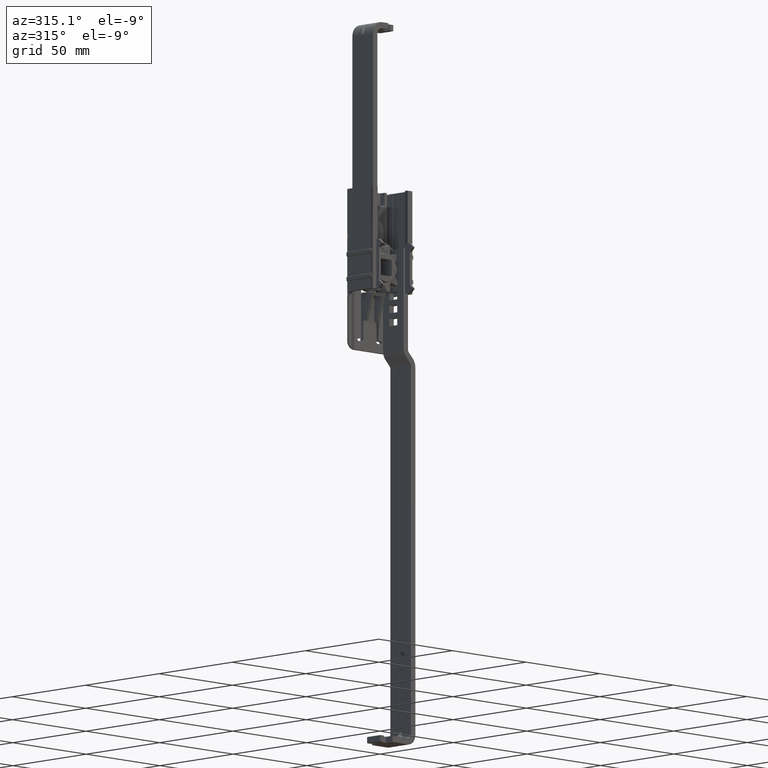
[diagram: clean part render]
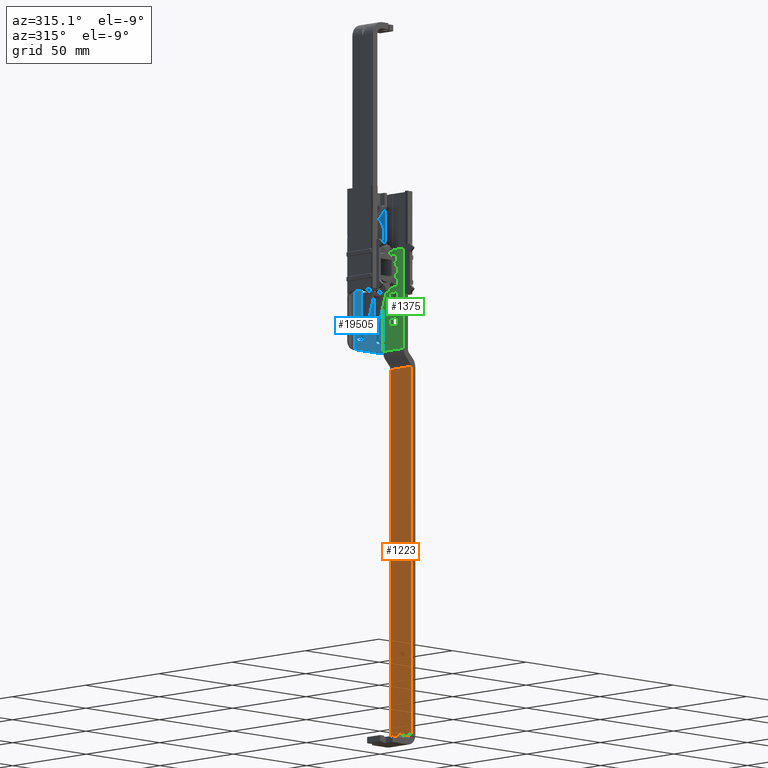
[diagram: same view with three faces highlighted in distinct colors, each labeled with its STEP entity id]
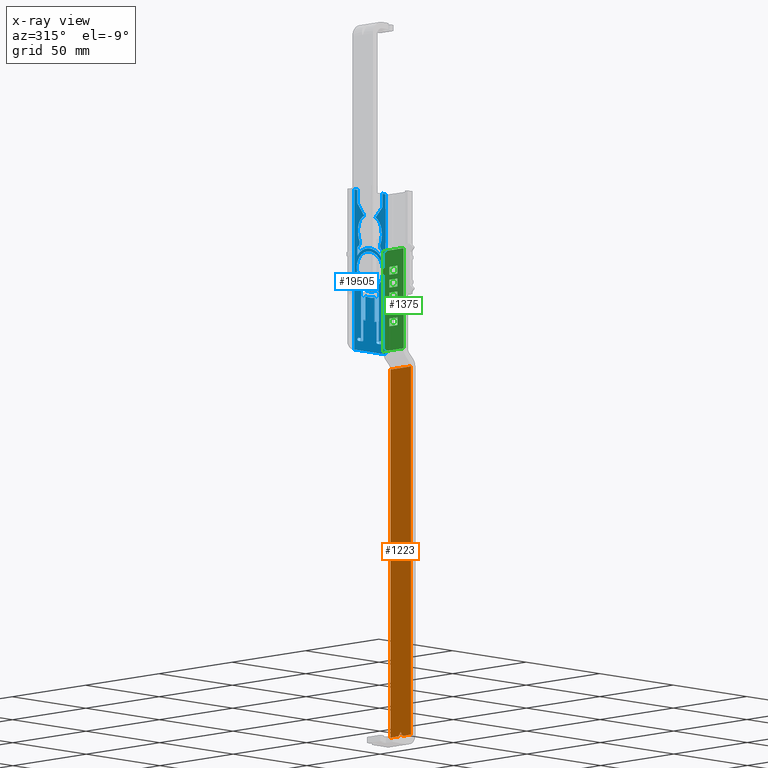
[diagram: x-ray of the same camera — body ghosted, the three highlighted faces saturated]
A machine part, auxiliary view with three faces highlighted in distinct colors.
The next image is the same camera in x-ray (body ghosted, the three faces saturated) — at least one of them is partly hidden behind the body in this view.
Their STEP definitions:

[orange] entity #1223 — the highlighted face is a freeform B-spline surface patch.
#698=CARTESIAN_POINT('',(13.900000278744701,-1.414213629544636,-226.700007715914500));
#699=VERTEX_POINT('',#698);
#713=CARTESIAN_POINT('',(13.900000278744701,5.551115E-014,-224.700007620919510));
#714=VERTEX_POINT('',#713);
#715=CARTESIAN_POINT('',(13.900000278744701,5.551115E-014,-224.700007620919510));
#716=CARTESIAN_POINT('',(13.900000278744701,-1.414213629544636,-226.700007715914500));
#717=QUASI_UNIFORM_CURVE('',1,(#715,#716),.UNSPECIFIED.,.F.,.U.);
#718=EDGE_CURVE('',#714,#699,#717,.T.);
#735=CARTESIAN_POINT('',(13.900000278744701,1.414213629544636,-226.700007715914500));
#736=VERTEX_POINT('',#735);
#756=CARTESIAN_POINT('',(13.900000278744701,5.551115E-014,-224.700007620919510));
#757=CARTESIAN_POINT('',(13.900000278744701,1.414213629544636,-226.700007715914500));
#758=QUASI_UNIFORM_CURVE('',1,(#756,#757),.UNSPECIFIED.,.F.,.U.);
#759=EDGE_CURVE('',#714,#736,#758,.T.);
#1024=CARTESIAN_POINT('',(13.900000278744701,7.000000332482160,-226.700007715914500));
#1025=VERTEX_POINT('',#1024);
#1039=CARTESIAN_POINT('',(13.900000278744839,7.000000332482160,-47.299533091249899));
#1040=VERTEX_POINT('',#1039);
#1041=CARTESIAN_POINT('',(13.900000278744839,7.000000332482160,-47.299533091249899));
#1042=CARTESIAN_POINT('',(13.900000278744701,7.000000332482160,-226.700007715914500));
#1043=QUASI_UNIFORM_CURVE('',1,(#1041,#1042),.UNSPECIFIED.,.F.,.U.);
#1044=EDGE_CURVE('',#1040,#1025,#1043,.T.);
#1184=CARTESIAN_POINT('',(13.900000278744701,7.000000332482160,-226.700007715914500));
#1185=CARTESIAN_POINT('',(13.900000278744701,1.414213629544636,-226.700007715914500));
#1186=QUASI_UNIFORM_CURVE('',1,(#1184,#1185),.UNSPECIFIED.,.F.,.U.);
#1187=EDGE_CURVE('',#1025,#736,#1186,.T.);
#1193=CARTESIAN_POINT('',(13.900000278744701,-7.699300469984287,-235.661066127953490));
#1194=CARTESIAN_POINT('',(13.900000278744701,-7.699300469984287,-38.338474679210961));
#1195=CARTESIAN_POINT('',(13.900000278744701,7.699300720323916,-235.661066127953490));
#1196=CARTESIAN_POINT('',(13.900000278744701,7.699300720323916,-38.338474679210961));
#1197=B_SPLINE_SURFACE_WITH_KNOTS('',1,1,((#1193,#1195),(#1194,#1196)),.UNSPECIFIED.,.F.,.F.,.U.,(2,2),(2,2),(0.0,197.322591448742490),(0.0,15.398601190308201),.UNSPECIFIED.);
#1198=ORIENTED_EDGE('',*,*,#759,.F.);
#1199=ORIENTED_EDGE('',*,*,#718,.T.);
#1200=CARTESIAN_POINT('',(13.900000278744701,-7.000000332482050,-226.700007715914500));
#1201=VERTEX_POINT('',#1200);
#1202=CARTESIAN_POINT('',(13.900000278744701,-1.414213629544636,-226.700007715914500));
#1203=CARTESIAN_POINT('',(13.900000278744701,-7.000000332482050,-226.700007715914500));
#1204=QUASI_UNIFORM_CURVE('',1,(#1202,#1203),.UNSPECIFIED.,.F.,.U.);
#1205=EDGE_CURVE('',#699,#1201,#1204,.T.);
#1206=ORIENTED_EDGE('',*,*,#1205,.T.);
#1207=CARTESIAN_POINT('',(13.900000278744839,-7.000000332482050,-47.299533091249899));
#1208=VERTEX_POINT('',#1207);
#1209=CARTESIAN_POINT('',(13.900000278744839,-7.000000332482050,-47.299533091249899));
#1210=CARTESIAN_POINT('',(13.900000278744701,-7.000000332482050,-226.700007715914500));
#1211=QUASI_UNIFORM_CURVE('',1,(#1209,#1210),.UNSPECIFIED.,.F.,.U.);
#1212=EDGE_CURVE('',#1208,#1201,#1211,.T.);
#1213=ORIENTED_EDGE('',*,*,#1212,.F.);
#1214=CARTESIAN_POINT('',(13.900000278744839,7.000000332482160,-47.299533091249899));
#1215=CARTESIAN_POINT('',(13.900000278744839,-7.000000332482050,-47.299533091249899));
#1216=QUASI_UNIFORM_CURVE('',1,(#1214,#1215),.UNSPECIFIED.,.F.,.U.);
#1217=EDGE_CURVE('',#1040,#1208,#1216,.T.);
#1218=ORIENTED_EDGE('',*,*,#1217,.F.);
#1219=ORIENTED_EDGE('',*,*,#1044,.T.);
#1220=ORIENTED_EDGE('',*,*,#1187,.T.);
#1221=EDGE_LOOP('',(#1198,#1199,#1206,#1213,#1218,#1219,#1220));
#1222=FACE_OUTER_BOUND('',#1221,.T.);
#1223=ADVANCED_FACE('',(#1222),#1197,.T.);

[blue] entity #19505 — the highlighted face is a freeform B-spline surface patch.
#7535=CARTESIAN_POINT('',(8.872564270109628,7.000000332482159,-0.698285953441692));
#7536=VERTEX_POINT('',#7535);
#7542=CARTESIAN_POINT('',(0.0,7.000000332482160,8.900000000000000));
#7543=VERTEX_POINT('',#7542);
#7544=CARTESIAN_POINT('',(8.872564270109628,7.000000332482159,-0.698285953441692));
#7545=CARTESIAN_POINT('',(8.900000000000000,7.000000332482160,-0.349681953838924));
#7546=CARTESIAN_POINT('',(8.900000000000000,7.000000332482160,0.0));
#7547=CARTESIAN_POINT('',(8.900000000000000,7.000000332482161,8.900000000000000));
#7548=CARTESIAN_POINT('',(0.0,7.000000332482160,8.900000000000000));
#7556=(BOUNDED_CURVE()B_SPLINE_CURVE(2,(#7544,#7545,#7546,#7547,#7548),.UNSPECIFIED.,.F.,.U.)B_SPLINE_CURVE_WITH_KNOTS((3,2,3),(0.736331300576201,0.750000000000000,1.0),.UNSPECIFIED.)CURVE()GEOMETRIC_REPRESENTATION_ITEM()RATIONAL_B_SPLINE_CURVE((0.969723356053766,0.983986122515079,1.0,0.707106781186548,1.0))REPRESENTATION_ITEM(''));
#7557=EDGE_CURVE('',#7536,#7543,#7556,.T.);
#7559=CARTESIAN_POINT('',(-8.872564270109628,7.000000332482161,0.698285953441691));
#7560=VERTEX_POINT('',#7559);
#7561=CARTESIAN_POINT('',(0.0,7.000000332482160,8.900000000000000));
#7562=CARTESIAN_POINT('',(-8.227075373034907,7.000000332482161,8.899999999999999));
#7563=CARTESIAN_POINT('',(-8.872564270109628,7.000000332482161,0.698285953441691));
#7571=(BOUNDED_CURVE()B_SPLINE_CURVE(2,(#7561,#7562,#7563),.UNSPECIFIED.,.F.,.U.)B_SPLINE_CURVE_WITH_KNOTS((3,3),(0.0,0.236331300576201),.UNSPECIFIED.)CURVE()GEOMETRIC_REPRESENTATION_ITEM()RATIONAL_B_SPLINE_CURVE((1.0,0.723120658671468,0.969723356053766))REPRESENTATION_ITEM(''));
#7572=EDGE_CURVE('',#7543,#7560,#7571,.T.);
#7618=CARTESIAN_POINT('',(0.0,7.000000332482160,-8.900000000000000));
#7619=VERTEX_POINT('',#7618);
#7620=CARTESIAN_POINT('',(-8.872564270109628,7.000000332482161,0.698285953441691));
#7621=CARTESIAN_POINT('',(-8.899999999999999,7.000000332482160,0.349681953838922));
#7622=CARTESIAN_POINT('',(-8.900000000000000,7.000000332482160,0.0));
#7623=CARTESIAN_POINT('',(-8.900000000000000,7.000000332482161,-8.900000000000000));
#7624=CARTESIAN_POINT('',(0.0,7.000000332482160,-8.900000000000000));
#7632=(BOUNDED_CURVE()B_SPLINE_CURVE(2,(#7620,#7621,#7622,#7623,#7624),.UNSPECIFIED.,.F.,.U.)B_SPLINE_CURVE_WITH_KNOTS((3,2,3),(0.236331300576201,0.250000000000000,0.500000000000000),.UNSPECIFIED.)CURVE()GEOMETRIC_REPRESENTATION_ITEM()RATIONAL_B_SPLINE_CURVE((0.969723356053766,0.983986122515080,1.0,0.707106781186548,1.0))REPRESENTATION_ITEM(''));
#7633=EDGE_CURVE('',#7560,#7619,#7632,.T.);
#7635=CARTESIAN_POINT('',(0.0,7.000000332482160,-8.900000000000000));
#7636=CARTESIAN_POINT('',(8.227075373034877,7.000000332482162,-8.900000000000000));
#7637=CARTESIAN_POINT('',(8.872564270109628,7.000000332482159,-0.698285953441692));
#7645=(BOUNDED_CURVE()B_SPLINE_CURVE(2,(#7635,#7636,#7637),.UNSPECIFIED.,.F.,.U.)B_SPLINE_CURVE_WITH_KNOTS((3,3),(0.500000000000000,0.736331300576200),.UNSPECIFIED.)CURVE()GEOMETRIC_REPRESENTATION_ITEM()RATIONAL_B_SPLINE_CURVE((1.0,0.723120658671469,0.969723356053765))REPRESENTATION_ITEM(''));
#7646=EDGE_CURVE('',#7619,#7536,#7645,.T.);
#8052=CARTESIAN_POINT('',(8.500000403728791,7.000000332482160,5.992495756123070));
#8053=VERTEX_POINT('',#8052);
#8102=CARTESIAN_POINT('',(-8.500000403728802,7.000000332482160,5.992495756123050));
#8103=VERTEX_POINT('',#8102);
#8137=CARTESIAN_POINT('',(8.500000403728794,7.000000332482160,5.992495756123069));
#8138=CARTESIAN_POINT('',(5.392711844738725,7.000000332482160,10.400000588968380));
#8139=CARTESIAN_POINT('',(0.0,7.000000332482160,10.400000588968380));
#8140=CARTESIAN_POINT('',(-5.392711844738736,7.000000332482160,10.400000588968380));
#8141=CARTESIAN_POINT('',(-8.500000403728803,7.000000332482160,5.992495756123058));
#8149=(BOUNDED_CURVE()B_SPLINE_CURVE(2,(#8137,#8138,#8139,#8140,#8141),.UNSPECIFIED.,.F.,.U.)B_SPLINE_CURVE_WITH_KNOTS((3,2,3),(0.0,0.500000000000000,1.0),.UNSPECIFIED.)CURVE()GEOMETRIC_REPRESENTATION_ITEM()RATIONAL_B_SPLINE_CURVE((1.0,0.887750382252983,1.0,0.887750382252983,1.0))REPRESENTATION_ITEM(''));
#8150=EDGE_CURVE('',#8053,#8103,#8149,.T.);
#9176=CARTESIAN_POINT('',(8.500000403728791,7.000000332482160,10.099010332132220));
#9177=VERTEX_POINT('',#9176);
#9178=CARTESIAN_POINT('',(8.500000403728791,7.000000332482160,5.992495756123070));
#9179=CARTESIAN_POINT('',(8.500000403728791,7.000000332482160,10.099010332132220));
#9180=QUASI_UNIFORM_CURVE('',1,(#9178,#9179),.UNSPECIFIED.,.F.,.U.);
#9181=EDGE_CURVE('',#8053,#9177,#9180,.T.);
#9203=CARTESIAN_POINT('',(-8.500000403728802,7.000000332482160,10.099010332132661));
#9204=VERTEX_POINT('',#9203);
#9205=CARTESIAN_POINT('',(-8.500000403728802,7.000000332482160,10.099010332132661));
#9206=CARTESIAN_POINT('',(-8.500000403728802,7.000000332482160,5.992495756123050));
#9207=QUASI_UNIFORM_CURVE('',1,(#9205,#9206),.UNSPECIFIED.,.F.,.U.);
#9208=EDGE_CURVE('',#9204,#8103,#9207,.T.);
#9241=CARTESIAN_POINT('',(3.907428746374555,7.000000332482160,25.980832370689001));
#9242=VERTEX_POINT('',#9241);
#9250=CARTESIAN_POINT('',(8.500000403728411,7.000000332482160,31.454046142592400));
#9251=VERTEX_POINT('',#9250);
#9252=CARTESIAN_POINT('',(8.500000403728411,7.000000332482160,31.454046142592400));
#9253=CARTESIAN_POINT('',(3.907428746374555,7.000000332482160,25.980832370689001));
#9254=QUASI_UNIFORM_CURVE('',1,(#9252,#9253),.UNSPECIFIED.,.F.,.U.);
#9255=EDGE_CURVE('',#9251,#9242,#9254,.T.);
#9270=CARTESIAN_POINT('',(8.500000403728411,7.000000332482160,38.000001804903100));
#9271=VERTEX_POINT('',#9270);
#9272=CARTESIAN_POINT('',(8.500000403728411,7.000000332482160,38.000001804903100));
#9273=CARTESIAN_POINT('',(8.500000403728411,7.000000332482160,31.454046142592400));
#9274=QUASI_UNIFORM_CURVE('',1,(#9272,#9273),.UNSPECIFIED.,.F.,.U.);
#9275=EDGE_CURVE('',#9271,#9251,#9274,.T.);
#9366=CARTESIAN_POINT('',(-8.500000403728411,7.000000332482160,31.454046142592400));
#9367=VERTEX_POINT('',#9366);
#9368=CARTESIAN_POINT('',(-8.500000403728411,7.000000332482160,38.000001804903100));
#9369=VERTEX_POINT('',#9368);
#9370=CARTESIAN_POINT('',(-8.500000403728411,7.000000332482160,31.454046142592400));
#9371=CARTESIAN_POINT('',(-8.500000403728411,7.000000332482160,38.000001804903100));
#9372=QUASI_UNIFORM_CURVE('',1,(#9370,#9371),.UNSPECIFIED.,.F.,.U.);
#9373=EDGE_CURVE('',#9367,#9369,#9372,.T.);
#9438=CARTESIAN_POINT('',(-3.907428746374555,7.000000332482160,25.980832370689001));
#9439=VERTEX_POINT('',#9438);
#9440=CARTESIAN_POINT('',(-3.907428746374555,7.000000332482160,25.980832370689001));
#9441=CARTESIAN_POINT('',(-8.500000403728411,7.000000332482160,31.454046142592400));
#9442=QUASI_UNIFORM_CURVE('',1,(#9440,#9441),.UNSPECIFIED.,.F.,.U.);
#9443=EDGE_CURVE('',#9439,#9367,#9442,.T.);
#9502=CARTESIAN_POINT('',(8.000000379979579,7.000000332482160,17.000000807456651));
#9503=VERTEX_POINT('',#9502);
#9509=CARTESIAN_POINT('',(8.000000379979579,7.000000332482160,19.000000902451450));
#9510=VERTEX_POINT('',#9509);
#9511=CARTESIAN_POINT('',(8.000000379979579,7.000000332482160,17.000000807456651));
#9512=CARTESIAN_POINT('',(8.000000379979579,7.000000332482160,19.000000902451450));
#9513=QUASI_UNIFORM_CURVE('',1,(#9511,#9512),.UNSPECIFIED.,.F.,.U.);
#9514=EDGE_CURVE('',#9503,#9510,#9513,.T.);
#9560=CARTESIAN_POINT('',(8.000000379979579,7.000000332482160,19.000000902451450));
#9561=CARTESIAN_POINT('',(8.000000379979991,7.000000332482160,23.690069045627766));
#9562=CARTESIAN_POINT('',(3.907428746374555,7.000000332482160,25.980832370689001));
#9570=(BOUNDED_CURVE()B_SPLINE_CURVE(2,(#9560,#9561,#9562),.UNSPECIFIED.,.F.,.U.)CURVE()GEOMETRIC_REPRESENTATION_ITEM()QUASI_UNIFORM_CURVE()RATIONAL_B_SPLINE_CURVE((1.0,0.862678551105531,1.0))REPRESENTATION_ITEM(''));
#9571=EDGE_CURVE('',#9510,#9242,#9570,.T.);
#9592=CARTESIAN_POINT('',(7.097949815014130,7.000000332482160,13.309592360791600));
#9593=VERTEX_POINT('',#9592);
#9601=CARTESIAN_POINT('',(7.097949815014136,7.000000332482160,13.309592360791591));
#9602=CARTESIAN_POINT('',(8.000000379979722,7.000000332482160,15.044551982000174));
#9603=CARTESIAN_POINT('',(8.000000379979579,7.000000332482160,17.000000807456651));
#9611=(BOUNDED_CURVE()B_SPLINE_CURVE(2,(#9601,#9602,#9603),.UNSPECIFIED.,.F.,.U.)CURVE()GEOMETRIC_REPRESENTATION_ITEM()QUASI_UNIFORM_CURVE()RATIONAL_B_SPLINE_CURVE((1.0,0.971401998334094,1.0))REPRESENTATION_ITEM(''));
#9612=EDGE_CURVE('',#9593,#9503,#9611,.T.);
#9636=CARTESIAN_POINT('',(-8.000000379979520,7.000000332482160,17.000000807456601));
#9637=VERTEX_POINT('',#9636);
#9652=CARTESIAN_POINT('',(-8.000000379979710,7.000000332482160,19.000000902451450));
#9653=VERTEX_POINT('',#9652);
#9659=CARTESIAN_POINT('',(-8.000000379979710,7.000000332482160,19.000000902451450));
#9660=CARTESIAN_POINT('',(-8.000000379979520,7.000000332482160,17.000000807456601));
#9661=QUASI_UNIFORM_CURVE('',1,(#9659,#9660),.UNSPECIFIED.,.F.,.U.);
#9662=EDGE_CURVE('',#9653,#9637,#9661,.T.);
#9681=CARTESIAN_POINT('',(7.808463576841071,7.000000332482160,10.642739925463600));
#9682=VERTEX_POINT('',#9681);
#9712=CARTESIAN_POINT('',(7.097949815014135,7.000000332482160,13.309592360791600));
#9713=CARTESIAN_POINT('',(6.395715602484533,7.000000332482162,11.694425029540900));
#9714=CARTESIAN_POINT('',(7.808463576841074,7.000000332482160,10.642739925463610));
#9722=(BOUNDED_CURVE()B_SPLINE_CURVE(2,(#9712,#9713,#9714),.UNSPECIFIED.,.F.,.U.)CURVE()GEOMETRIC_REPRESENTATION_ITEM()QUASI_UNIFORM_CURVE()RATIONAL_B_SPLINE_CURVE((1.0,0.783513080592673,1.0))REPRESENTATION_ITEM(''));
#9723=EDGE_CURVE('',#9593,#9682,#9722,.T.);
#9756=CARTESIAN_POINT('',(-7.097908734437640,7.000000332482160,13.309497867794960));
#9757=VERTEX_POINT('',#9756);
#9783=CARTESIAN_POINT('',(-8.000000379979520,7.000000332482160,17.000000807456601));
#9784=CARTESIAN_POINT('',(-8.000003548259221,7.000000332482160,15.044495869587905));
#9785=CARTESIAN_POINT('',(-7.097908734437640,7.000000332482160,13.309497867794960));
#9793=(BOUNDED_CURVE()B_SPLINE_CURVE(2,(#9783,#9784,#9785),.UNSPECIFIED.,.F.,.U.)CURVE()GEOMETRIC_REPRESENTATION_ITEM()QUASI_UNIFORM_CURVE()RATIONAL_B_SPLINE_CURVE((1.0,0.971400472923823,1.0))REPRESENTATION_ITEM(''));
#9794=EDGE_CURVE('',#9637,#9757,#9793,.T.);
#9815=CARTESIAN_POINT('',(-7.808463576849401,7.000000332482160,10.642739925457480));
#9816=VERTEX_POINT('',#9815);
#9858=CARTESIAN_POINT('',(-7.808463576849405,7.000000332482160,10.642739925457480));
#9859=CARTESIAN_POINT('',(-6.395782917492917,7.000000332482160,11.694374918546524));
#9860=CARTESIAN_POINT('',(-7.097908734437635,7.000000332482160,13.309497867794960));
#9868=(BOUNDED_CURVE()B_SPLINE_CURVE(2,(#9858,#9859,#9860),.UNSPECIFIED.,.F.,.U.)CURVE()GEOMETRIC_REPRESENTATION_ITEM()QUASI_UNIFORM_CURVE()RATIONAL_B_SPLINE_CURVE((1.0,0.783527495207334,1.0))REPRESENTATION_ITEM(''));
#9869=EDGE_CURVE('',#9816,#9757,#9868,.T.);
#16624=CARTESIAN_POINT('',(-5.250000249361620,7.000000332482160,-35.500001686159600));
#16625=VERTEX_POINT('',#16624);
#16626=CARTESIAN_POINT('',(-4.500000213738530,7.000000332482160,-34.750001650536497));
#16627=VERTEX_POINT('',#16626);
#16628=CARTESIAN_POINT('',(-5.250000249361620,7.000000332482160,-35.500001686159592));
#16629=CARTESIAN_POINT('',(-4.500000213738531,7.000000332482161,-35.500001686159592));
#16630=CARTESIAN_POINT('',(-4.500000213738531,7.000000332482160,-34.750001650536497));
#16638=(BOUNDED_CURVE()B_SPLINE_CURVE(2,(#16628,#16629,#16630),.UNSPECIFIED.,.F.,.U.)CURVE()GEOMETRIC_REPRESENTATION_ITEM()QUASI_UNIFORM_CURVE()RATIONAL_B_SPLINE_CURVE((1.0,0.707106781186548,1.0))REPRESENTATION_ITEM(''));
#16639=EDGE_CURVE('',#16625,#16627,#16638,.T.);
#16676=CARTESIAN_POINT('',(-7.750000368105250,7.000000332482160,-35.500001686159600));
#16677=VERTEX_POINT('',#16676);
#16678=CARTESIAN_POINT('',(-7.750000368105250,7.000000332482160,-35.500001686159600));
#16679=CARTESIAN_POINT('',(-5.250000249361620,7.000000332482160,-35.500001686159600));
#16680=QUASI_UNIFORM_CURVE('',1,(#16678,#16679),.UNSPECIFIED.,.F.,.U.);
#16681=EDGE_CURVE('',#16677,#16625,#16680,.T.);
#16717=CARTESIAN_POINT('',(-7.750000368105250,7.000000332482160,-34.000001614913401));
#16718=VERTEX_POINT('',#16717);
#16719=CARTESIAN_POINT('',(-7.750000368105250,7.000000332482160,-34.000001614913380));
#16720=CARTESIAN_POINT('',(-8.500000403728368,7.000000332482162,-34.000001614913387));
#16721=CARTESIAN_POINT('',(-8.500000403728368,7.000000332482160,-34.750001650536497));
#16722=CARTESIAN_POINT('',(-8.500000403728368,7.000000332482162,-35.500001686159614));
#16723=CARTESIAN_POINT('',(-7.750000368105250,7.000000332482160,-35.500001686159607));
#16731=(BOUNDED_CURVE()B_SPLINE_CURVE(2,(#16719,#16720,#16721,#16722,#16723),.UNSPECIFIED.,.F.,.U.)B_SPLINE_CURVE_WITH_KNOTS((3,2,3),(0.0,0.500000000000000,1.0),.UNSPECIFIED.)CURVE()GEOMETRIC_REPRESENTATION_ITEM()RATIONAL_B_SPLINE_CURVE((1.0,0.707106781186547,1.0,0.707106781186547,1.0))REPRESENTATION_ITEM(''));
#16732=EDGE_CURVE('',#16718,#16677,#16731,.T.);
#16765=CARTESIAN_POINT('',(-6.500000308733380,7.000000332482160,-34.000001614913351));
#16766=VERTEX_POINT('',#16765);
#16767=CARTESIAN_POINT('',(-6.500000308733380,7.000000332482160,-34.000001614913351));
#16768=CARTESIAN_POINT('',(-7.750000368105250,7.000000332482160,-34.000001614913401));
#16769=QUASI_UNIFORM_CURVE('',1,(#16767,#16768),.UNSPECIFIED.,.F.,.U.);
#16770=EDGE_CURVE('',#16766,#16718,#16769,.T.);
#16802=CARTESIAN_POINT('',(-6.000000284984710,7.000000332482160,-33.500001591164597));
#16803=VERTEX_POINT('',#16802);
#16804=CARTESIAN_POINT('',(-6.500000308733430,7.000000332482160,-34.000001614913323));
#16805=CARTESIAN_POINT('',(-6.000000284984709,7.000000332482161,-34.000001614913309));
#16806=CARTESIAN_POINT('',(-6.000000284984709,7.000000332482160,-33.500001591164597));
#16814=(BOUNDED_CURVE()B_SPLINE_CURVE(2,(#16804,#16805,#16806),.UNSPECIFIED.,.F.,.U.)CURVE()GEOMETRIC_REPRESENTATION_ITEM()QUASI_UNIFORM_CURVE()RATIONAL_B_SPLINE_CURVE((1.0,0.707106781186548,1.0))REPRESENTATION_ITEM(''));
#16815=EDGE_CURVE('',#16766,#16803,#16814,.T.);
#16846=CARTESIAN_POINT('',(-6.000000284984650,7.000000332482160,-10.467091783660241));
#16847=VERTEX_POINT('',#16846);
#16848=CARTESIAN_POINT('',(-6.000000284984650,7.000000332482160,-10.467091783660241));
#16849=CARTESIAN_POINT('',(-6.000000284984710,7.000000332482160,-33.500001591164597));
#16850=QUASI_UNIFORM_CURVE('',1,(#16848,#16849),.UNSPECIFIED.,.F.,.U.);
#16851=EDGE_CURVE('',#16847,#16803,#16850,.T.);
#16883=CARTESIAN_POINT('',(-4.568965734255530,7.000000332482160,-9.564756285072079));
#16884=VERTEX_POINT('',#16883);
#16885=CARTESIAN_POINT('',(-4.568965734255530,7.000000332482160,-9.564756285072079));
#16886=CARTESIAN_POINT('',(-5.066738743983948,7.000000332482161,-9.326976277182203));
#16887=CARTESIAN_POINT('',(-5.533369514484297,7.000000332482160,-9.621209221273187));
#16888=CARTESIAN_POINT('',(-6.000000284984645,7.000000332482161,-9.915442165364173));
#16889=CARTESIAN_POINT('',(-6.000000284984645,7.000000332482160,-10.467091783660241));
#16897=(BOUNDED_CURVE()B_SPLINE_CURVE(2,(#16885,#16886,#16887,#16888,#16889),.UNSPECIFIED.,.F.,.U.)B_SPLINE_CURVE_WITH_KNOTS((3,2,3),(0.0,0.500000000000000,1.0),.UNSPECIFIED.)CURVE()GEOMETRIC_REPRESENTATION_ITEM()RATIONAL_B_SPLINE_CURVE((1.0,0.875605291116785,1.0,0.875605291116785,1.0))REPRESENTATION_ITEM(''));
#16898=EDGE_CURVE('',#16884,#16847,#16897,.T.);
#16940=CARTESIAN_POINT('',(4.568965734254590,7.000000332482160,-9.564756285069009));
#16941=VERTEX_POINT('',#16940);
#16942=CARTESIAN_POINT('',(-4.568965734255530,7.000000332482160,-9.564756285072077));
#16943=CARTESIAN_POINT('',(2.619432E-013,7.000000332482160,-11.747294685280261));
#16944=CARTESIAN_POINT('',(4.568965734254590,7.000000332482160,-9.564756285069009));
#16952=(BOUNDED_CURVE()B_SPLINE_CURVE(2,(#16942,#16943,#16944),.UNSPECIFIED.,.F.,.U.)CURVE()GEOMETRIC_REPRESENTATION_ITEM()QUASI_UNIFORM_CURVE()RATIONAL_B_SPLINE_CURVE((1.0,0.902335455733064,1.0))REPRESENTATION_ITEM(''));
#16953=EDGE_CURVE('',#16884,#16941,#16952,.T.);
#16993=CARTESIAN_POINT('',(6.000000284984650,7.000000332482160,-10.467091783660241));
#16994=VERTEX_POINT('',#16993);
#16995=CARTESIAN_POINT('',(6.000000284984650,7.000000332482160,-10.467091783660241));
#16996=CARTESIAN_POINT('',(6.000000284984711,7.000000332482160,-9.915442165364309));
#16997=CARTESIAN_POINT('',(5.533369514484537,7.000000332482160,-9.621209221273295));
#16998=CARTESIAN_POINT('',(5.066738743984365,7.000000332482160,-9.326976277182283));
#16999=CARTESIAN_POINT('',(4.568965734254594,7.000000332482160,-9.564756285069018));
#17007=(BOUNDED_CURVE()B_SPLINE_CURVE(2,(#16995,#16996,#16997,#16998,#16999),.UNSPECIFIED.,.F.,.U.)B_SPLINE_CURVE_WITH_KNOTS((3,2,3),(0.0,0.500000000000000,1.0),.UNSPECIFIED.)CURVE()GEOMETRIC_REPRESENTATION_ITEM()RATIONAL_B_SPLINE_CURVE((1.0,0.875605291116836,1.0,0.875605291116836,1.0))REPRESENTATION_ITEM(''));
#17008=EDGE_CURVE('',#16994,#16941,#17007,.T.);
#17041=CARTESIAN_POINT('',(6.000000284984750,7.000000332482160,-33.500001591164647));
#17042=VERTEX_POINT('',#17041);
#17043=CARTESIAN_POINT('',(6.000000284984750,7.000000332482160,-33.500001591164647));
#17044=CARTESIAN_POINT('',(6.000000284984650,7.000000332482160,-10.467091783660241));
#17045=QUASI_UNIFORM_CURVE('',1,(#17043,#17044),.UNSPECIFIED.,.F.,.U.);
#17046=EDGE_CURVE('',#17042,#16994,#17045,.T.);
#17078=CARTESIAN_POINT('',(6.500000308733489,7.000000332482160,-34.000001614913401));
#17079=VERTEX_POINT('',#17078);
#17080=CARTESIAN_POINT('',(6.000000284984750,7.000000332482160,-33.500001591164647));
#17081=CARTESIAN_POINT('',(6.000000284984805,7.000000332482159,-34.000001614913330));
#17082=CARTESIAN_POINT('',(6.500000308733489,7.000000332482160,-34.000001614913337));
#17090=(BOUNDED_CURVE()B_SPLINE_CURVE(2,(#17080,#17081,#17082),.UNSPECIFIED.,.F.,.U.)CURVE()GEOMETRIC_REPRESENTATION_ITEM()QUASI_UNIFORM_CURVE()RATIONAL_B_SPLINE_CURVE((1.0,0.707106781186587,1.0))REPRESENTATION_ITEM(''));
#17091=EDGE_CURVE('',#17042,#17079,#17090,.T.);
#17122=CARTESIAN_POINT('',(7.750000368105250,7.000000332482160,-34.000001614913401));
#17123=VERTEX_POINT('',#17122);
#17124=CARTESIAN_POINT('',(7.750000368105250,7.000000332482160,-34.000001614913401));
#17125=CARTESIAN_POINT('',(6.500000308733489,7.000000332482160,-34.000001614913401));
#17126=QUASI_UNIFORM_CURVE('',1,(#17124,#17125),.UNSPECIFIED.,.F.,.U.);
#17127=EDGE_CURVE('',#17123,#17079,#17126,.T.);
#17163=CARTESIAN_POINT('',(7.750000368105250,7.000000332482160,-35.500001686159500));
#17164=VERTEX_POINT('',#17163);
#17165=CARTESIAN_POINT('',(7.750000368105250,7.000000332482160,-35.500001686159578));
#17166=CARTESIAN_POINT('',(8.500000403728331,7.000000332482162,-35.500001686159585));
#17167=CARTESIAN_POINT('',(8.500000403728331,7.000000332482160,-34.750001650536497));
#17168=CARTESIAN_POINT('',(8.500000403728331,7.000000332482162,-34.000001614913415));
#17169=CARTESIAN_POINT('',(7.750000368105250,7.000000332482160,-34.000001614913423));
#17177=(BOUNDED_CURVE()B_SPLINE_CURVE(2,(#17165,#17166,#17167,#17168,#17169),.UNSPECIFIED.,.F.,.U.)B_SPLINE_CURVE_WITH_KNOTS((3,2,3),(0.0,0.500000000000000,1.0),.UNSPECIFIED.)CURVE()GEOMETRIC_REPRESENTATION_ITEM()RATIONAL_B_SPLINE_CURVE((1.0,0.707106781186547,1.0,0.707106781186547,1.0))REPRESENTATION_ITEM(''));
#17178=EDGE_CURVE('',#17164,#17123,#17177,.T.);
#17211=CARTESIAN_POINT('',(5.250000249361561,7.000000332482160,-35.500001686159550));
#17212=VERTEX_POINT('',#17211);
#17213=CARTESIAN_POINT('',(5.250000249361561,7.000000332482160,-35.500001686159550));
#17214=CARTESIAN_POINT('',(7.750000368105250,7.000000332482160,-35.500001686159500));
#17215=QUASI_UNIFORM_CURVE('',1,(#17213,#17214),.UNSPECIFIED.,.F.,.U.);
#17216=EDGE_CURVE('',#17212,#17164,#17215,.T.);
#17248=CARTESIAN_POINT('',(4.500000213738590,7.000000332482160,-34.750001650536497));
#17249=VERTEX_POINT('',#17248);
#17250=CARTESIAN_POINT('',(4.500000213738491,7.000000332482160,-34.750001650536497));
#17251=CARTESIAN_POINT('',(4.500000213738491,7.000000332482162,-35.500001686159571));
#17252=CARTESIAN_POINT('',(5.250000249361561,7.000000332482160,-35.500001686159557));
#17260=(BOUNDED_CURVE()B_SPLINE_CURVE(2,(#17250,#17251,#17252),.UNSPECIFIED.,.F.,.U.)CURVE()GEOMETRIC_REPRESENTATION_ITEM()QUASI_UNIFORM_CURVE()RATIONAL_B_SPLINE_CURVE((1.0,0.707106781186547,1.0))REPRESENTATION_ITEM(''));
#17261=EDGE_CURVE('',#17249,#17212,#17260,.T.);
#17636=CARTESIAN_POINT('',(-10.000000664964400,7.000000332482160,-40.000001899898102));
#17637=VERTEX_POINT('',#17636);
#17643=CARTESIAN_POINT('',(-10.600000503471099,7.000000332482160,-39.954745911056349));
#17644=VERTEX_POINT('',#17643);
#17645=CARTESIAN_POINT('',(-10.600000503471099,7.000000332482160,-39.954745911056342));
#17646=CARTESIAN_POINT('',(-10.301707338448836,7.000000332482160,-40.000001899898095));
#17647=CARTESIAN_POINT('',(-10.000000664964400,7.000000332482160,-40.000001899898102));
#17655=(BOUNDED_CURVE()B_SPLINE_CURVE(2,(#17645,#17646,#17647),.UNSPECIFIED.,.F.,.U.)CURVE()GEOMETRIC_REPRESENTATION_ITEM()QUASI_UNIFORM_CURVE()RATIONAL_B_SPLINE_CURVE((1.0,0.997167489138500,1.0))REPRESENTATION_ITEM(''));
#17656=EDGE_CURVE('',#17644,#17637,#17655,.T.);
#17712=CARTESIAN_POINT('',(10.000000664964301,7.000000332482160,-40.000001899898102));
#17713=VERTEX_POINT('',#17712);
#17751=CARTESIAN_POINT('',(10.600000503472581,7.000000332482160,-39.954745911055937));
#17752=VERTEX_POINT('',#17751);
#17766=CARTESIAN_POINT('',(10.000000664964301,7.000000332482160,-40.000001899898102));
#17767=CARTESIAN_POINT('',(10.301707338449553,7.000000332482160,-40.000001899898095));
#17768=CARTESIAN_POINT('',(10.600000503472600,7.000000332482160,-39.954745911056087));
#17776=(BOUNDED_CURVE()B_SPLINE_CURVE(2,(#17766,#17767,#17768),.UNSPECIFIED.,.F.,.U.)CURVE()GEOMETRIC_REPRESENTATION_ITEM()QUASI_UNIFORM_CURVE()RATIONAL_B_SPLINE_CURVE((1.0,0.997167489138484,1.0))REPRESENTATION_ITEM(''));
#17777=EDGE_CURVE('',#17713,#17752,#17776,.T.);
#17942=CARTESIAN_POINT('',(-10.600000503471099,7.000000332482160,38.000001804903150));
#17943=VERTEX_POINT('',#17942);
#17949=CARTESIAN_POINT('',(-8.500000403728411,7.000000332482160,38.000001804903100));
#17950=CARTESIAN_POINT('',(-10.600000503471099,7.000000332482160,38.000001804903150));
#17951=QUASI_UNIFORM_CURVE('',1,(#17949,#17950),.UNSPECIFIED.,.F.,.U.);
#17952=EDGE_CURVE('',#9369,#17943,#17951,.T.);
#17973=CARTESIAN_POINT('',(10.600000503472581,7.000000332482160,38.000001804903150));
#17974=VERTEX_POINT('',#17973);
#17975=CARTESIAN_POINT('',(10.600000503472581,7.000000332482160,38.000001804903150));
#17976=CARTESIAN_POINT('',(8.500000403728411,7.000000332482160,38.000001804903100));
#17977=QUASI_UNIFORM_CURVE('',1,(#17975,#17976),.UNSPECIFIED.,.F.,.U.);
#17978=EDGE_CURVE('',#17974,#9271,#17977,.T.);
#18106=CARTESIAN_POINT('',(10.000000664964301,7.000000332482160,-40.000001899898102));
#18107=CARTESIAN_POINT('',(-10.000000664964400,7.000000332482160,-40.000001899898102));
#18108=QUASI_UNIFORM_CURVE('',1,(#18106,#18107),.UNSPECIFIED.,.F.,.U.);
#18109=EDGE_CURVE('',#17713,#17637,#18108,.T.);
#18147=CARTESIAN_POINT('',(10.600000503472581,7.000000332482160,-39.954745911055937));
#18148=CARTESIAN_POINT('',(10.600000503472581,7.000000332482160,38.000001804903150));
#18149=QUASI_UNIFORM_CURVE('',1,(#18147,#18148),.UNSPECIFIED.,.F.,.U.);
#18150=EDGE_CURVE('',#17752,#17974,#18149,.T.);
#18173=CARTESIAN_POINT('',(-10.600000503471099,7.000000332482160,-39.954745911056349));
#18174=CARTESIAN_POINT('',(-10.600000503471099,7.000000332482160,38.000001804903150));
#18175=QUASI_UNIFORM_CURVE('',1,(#18173,#18174),.UNSPECIFIED.,.F.,.U.);
#18176=EDGE_CURVE('',#17644,#17943,#18175,.T.);
#18780=CARTESIAN_POINT('',(3.000000142492295,7.000000332482160,-25.000001187436350));
#18781=VERTEX_POINT('',#18780);
#18787=CARTESIAN_POINT('',(4.500000213738590,7.000000332482160,-25.000001187436350));
#18788=VERTEX_POINT('',#18787);
#18789=CARTESIAN_POINT('',(3.000000142492295,7.000000332482160,-25.000001187436350));
#18790=CARTESIAN_POINT('',(4.500000213738590,7.000000332482160,-25.000001187436350));
#18791=QUASI_UNIFORM_CURVE('',1,(#18789,#18790),.UNSPECIFIED.,.F.,.U.);
#18792=EDGE_CURVE('',#18781,#18788,#18791,.T.);
#18808=CARTESIAN_POINT('',(3.000000142491845,7.000000332482160,-13.264992149085719));
#18809=VERTEX_POINT('',#18808);
#18815=CARTESIAN_POINT('',(3.000000142491845,7.000000332482160,-13.264992149085719));
#18816=CARTESIAN_POINT('',(3.000000142492295,7.000000332482160,-25.000001187436350));
#18817=QUASI_UNIFORM_CURVE('',1,(#18815,#18816),.UNSPECIFIED.,.F.,.U.);
#18818=EDGE_CURVE('',#18809,#18781,#18817,.T.);
#18839=CARTESIAN_POINT('',(-3.000000142492410,7.000000332482160,-13.264992149085600));
#18840=VERTEX_POINT('',#18839);
#18846=CARTESIAN_POINT('',(-3.000000142492414,7.000000332482160,-13.264992149085600));
#18847=CARTESIAN_POINT('',(-3.001072E-013,7.000000332482160,-13.943470636844754));
#18848=CARTESIAN_POINT('',(3.000000142491841,7.000000332482160,-13.264992149085730));
#18856=(BOUNDED_CURVE()B_SPLINE_CURVE(2,(#18846,#18847,#18848),.UNSPECIFIED.,.F.,.U.)CURVE()GEOMETRIC_REPRESENTATION_ITEM()QUASI_UNIFORM_CURVE()RATIONAL_B_SPLINE_CURVE((1.0,0.975366965669773,1.0))REPRESENTATION_ITEM(''));
#18857=EDGE_CURVE('',#18840,#18809,#18856,.T.);
#18869=CARTESIAN_POINT('',(-3.000000142492410,7.000000332482160,-25.000001187436350));
#18870=VERTEX_POINT('',#18869);
#18876=CARTESIAN_POINT('',(-3.000000142492410,7.000000332482160,-25.000001187436350));
#18877=CARTESIAN_POINT('',(-3.000000142492410,7.000000332482160,-13.264992149085600));
#18878=QUASI_UNIFORM_CURVE('',1,(#18876,#18877),.UNSPECIFIED.,.F.,.U.);
#18879=EDGE_CURVE('',#18870,#18840,#18878,.T.);
#18891=CARTESIAN_POINT('',(-4.500000213738599,7.000000332482160,-25.000001187436350));
#18892=VERTEX_POINT('',#18891);
#18898=CARTESIAN_POINT('',(-4.500000213738599,7.000000332482160,-25.000001187436350));
#18899=CARTESIAN_POINT('',(-3.000000142492410,7.000000332482160,-25.000001187436350));
#18900=QUASI_UNIFORM_CURVE('',1,(#18898,#18899),.UNSPECIFIED.,.F.,.U.);
#18901=EDGE_CURVE('',#18892,#18870,#18900,.T.);
#18914=CARTESIAN_POINT('',(4.500000213738590,7.000000332482160,-25.000001187436350));
#18915=CARTESIAN_POINT('',(4.500000213738590,7.000000332482160,-34.750001650536497));
#18916=QUASI_UNIFORM_CURVE('',1,(#18914,#18915),.UNSPECIFIED.,.F.,.U.);
#18917=EDGE_CURVE('',#18788,#17249,#18916,.T.);
#19069=CARTESIAN_POINT('',(-4.500000213738530,7.000000332482160,-34.750001650536497));
#19070=CARTESIAN_POINT('',(-4.500000213738599,7.000000332482160,-25.000001187436350));
#19071=QUASI_UNIFORM_CURVE('',1,(#19069,#19070),.UNSPECIFIED.,.F.,.U.);
#19072=EDGE_CURVE('',#16627,#18892,#19071,.T.);
#19390=CARTESIAN_POINT('',(-3.907428746374555,7.000000332482160,25.980832370689001));
#19391=CARTESIAN_POINT('',(-8.000000379979991,7.000000332482160,23.690069045627766));
#19392=CARTESIAN_POINT('',(-8.000000379979710,7.000000332482160,19.000000902451450));
#19400=(BOUNDED_CURVE()B_SPLINE_CURVE(2,(#19390,#19391,#19392),.UNSPECIFIED.,.F.,.U.)CURVE()GEOMETRIC_REPRESENTATION_ITEM()QUASI_UNIFORM_CURVE()RATIONAL_B_SPLINE_CURVE((1.0,0.862678551105531,1.0))REPRESENTATION_ITEM(''));
#19401=EDGE_CURVE('',#9439,#9653,#19400,.T.);
#19420=CARTESIAN_POINT('',(-11.658940512678219,7.000000332482160,-43.896100190686532));
#19421=CARTESIAN_POINT('',(-11.658940512678219,7.000000332482160,41.896098003568440));
#19422=CARTESIAN_POINT('',(11.658941081308040,7.000000332482160,-43.896100190686532));
#19423=CARTESIAN_POINT('',(11.658941081308040,7.000000332482160,41.896098003568440));
#19424=B_SPLINE_SURFACE_WITH_KNOTS('',1,1,((#19420,#19422),(#19421,#19423)),.UNSPECIFIED.,.F.,.F.,.U.,(2,2),(2,2),(0.0,85.792198194254979),(0.0,23.317881593986261),.UNSPECIFIED.);
#19425=ORIENTED_EDGE('',*,*,#8150,.T.);
#19426=ORIENTED_EDGE('',*,*,#9208,.F.);
#19427=CARTESIAN_POINT('',(-7.808463576849401,7.000000332482160,10.642739925457480));
#19428=CARTESIAN_POINT('',(-8.163296052698938,7.000000332482160,10.382403162278086));
#19429=CARTESIAN_POINT('',(-8.500000403728791,7.000000332482160,10.099010332132661));
#19437=(BOUNDED_CURVE()B_SPLINE_CURVE(2,(#19427,#19428,#19429),.UNSPECIFIED.,.F.,.U.)CURVE()GEOMETRIC_REPRESENTATION_ITEM()QUASI_UNIFORM_CURVE()RATIONAL_B_SPLINE_CURVE((1.0,0.999444674074985,1.0))REPRESENTATION_ITEM(''));
#19438=EDGE_CURVE('',#9816,#9204,#19437,.T.);
#19439=ORIENTED_EDGE('',*,*,#19438,.F.);
#19440=ORIENTED_EDGE('',*,*,#9869,.T.);
#19441=ORIENTED_EDGE('',*,*,#9794,.F.);
#19442=ORIENTED_EDGE('',*,*,#9662,.F.);
#19443=ORIENTED_EDGE('',*,*,#19401,.F.);
#19444=ORIENTED_EDGE('',*,*,#9443,.T.);
#19445=ORIENTED_EDGE('',*,*,#9373,.T.);
#19446=ORIENTED_EDGE('',*,*,#17952,.T.);
#19447=ORIENTED_EDGE('',*,*,#18176,.F.);
#19448=ORIENTED_EDGE('',*,*,#17656,.T.);
#19449=ORIENTED_EDGE('',*,*,#18109,.F.);
#19450=ORIENTED_EDGE('',*,*,#17777,.T.);
#19451=ORIENTED_EDGE('',*,*,#18150,.T.);
#19452=ORIENTED_EDGE('',*,*,#17978,.T.);
#19453=ORIENTED_EDGE('',*,*,#9275,.T.);
#19454=ORIENTED_EDGE('',*,*,#9255,.T.);
#19455=ORIENTED_EDGE('',*,*,#9571,.F.);
#19456=ORIENTED_EDGE('',*,*,#9514,.F.);
#19457=ORIENTED_EDGE('',*,*,#9612,.F.);
#19458=ORIENTED_EDGE('',*,*,#9723,.T.);
#19459=CARTESIAN_POINT('',(8.500000403728791,7.000000332482160,10.099010332132220));
#19460=CARTESIAN_POINT('',(8.163296052695104,7.000000332482160,10.382403162281326));
#19461=CARTESIAN_POINT('',(7.808463576841071,7.000000332482160,10.642739925463600));
#19469=(BOUNDED_CURVE()B_SPLINE_CURVE(2,(#19459,#19460,#19461),.UNSPECIFIED.,.F.,.U.)CURVE()GEOMETRIC_REPRESENTATION_ITEM()QUASI_UNIFORM_CURVE()RATIONAL_B_SPLINE_CURVE((1.0,0.999444674074972,1.0))REPRESENTATION_ITEM(''));
#19470=EDGE_CURVE('',#9177,#9682,#19469,.T.);
#19471=ORIENTED_EDGE('',*,*,#19470,.F.);
#19472=ORIENTED_EDGE('',*,*,#9181,.F.);
#19473=EDGE_LOOP('',(#19425,#19426,#19439,#19440,#19441,#19442,#19443,#19444,#19445,#19446,#19447,#19448,#19449,#19450,#19451,#19452,#19453,#19454,#19455,#19456,#19457,#19458,#19471,#19472));
#19474=FACE_OUTER_BOUND('',#19473,.T.);
#19475=ORIENTED_EDGE('',*,*,#18901,.F.);
#19476=ORIENTED_EDGE('',*,*,#19072,.F.);
#19477=ORIENTED_EDGE('',*,*,#16639,.F.);
#19478=ORIENTED_EDGE('',*,*,#16681,.F.);
#19479=ORIENTED_EDGE('',*,*,#16732,.F.);
#19480=ORIENTED_EDGE('',*,*,#16770,.F.);
#19481=ORIENTED_EDGE('',*,*,#16815,.T.);
#19482=ORIENTED_EDGE('',*,*,#16851,.F.);
#19483=ORIENTED_EDGE('',*,*,#16898,.F.);
#19484=ORIENTED_EDGE('',*,*,#16953,.T.);
#19485=ORIENTED_EDGE('',*,*,#17008,.F.);
#19486=ORIENTED_EDGE('',*,*,#17046,.F.);
#19487=ORIENTED_EDGE('',*,*,#17091,.T.);
#19488=ORIENTED_EDGE('',*,*,#17127,.F.);
#19489=ORIENTED_EDGE('',*,*,#17178,.F.);
#19490=ORIENTED_EDGE('',*,*,#17216,.F.);
#19491=ORIENTED_EDGE('',*,*,#17261,.F.);
#19492=ORIENTED_EDGE('',*,*,#18917,.F.);
#19493=ORIENTED_EDGE('',*,*,#18792,.F.);
#19494=ORIENTED_EDGE('',*,*,#18818,.F.);
#19495=ORIENTED_EDGE('',*,*,#18857,.F.);
#19496=ORIENTED_EDGE('',*,*,#18879,.F.);
#19497=EDGE_LOOP('',(#19475,#19476,#19477,#19478,#19479,#19480,#19481,#19482,#19483,#19484,#19485,#19486,#19487,#19488,#19489,#19490,#19491,#19492,#19493,#19494,#19495,#19496));
#19498=FACE_BOUND('',#19497,.T.);
#19499=ORIENTED_EDGE('',*,*,#7646,.F.);
#19500=ORIENTED_EDGE('',*,*,#7633,.F.);
#19501=ORIENTED_EDGE('',*,*,#7572,.F.);
#19502=ORIENTED_EDGE('',*,*,#7557,.F.);
#19503=EDGE_LOOP('',(#19499,#19500,#19501,#19502));
#19504=FACE_BOUND('',#19503,.T.);
#19505=ADVANCED_FACE('',(#19474,#19498,#19504),#19424,.F.);

[green] entity #1375 — the highlighted face is a freeform B-spline surface patch.
#58=CARTESIAN_POINT('',(8.900000041257700,-2.700000128243120,-27.219998231622998));
#59=VERTEX_POINT('',#58);
#65=CARTESIAN_POINT('',(8.900000041257680,-2.700000128243120,-23.419998051133149));
#66=VERTEX_POINT('',#65);
#67=CARTESIAN_POINT('',(8.900000041257680,-2.700000128243120,-23.419998051133149));
#68=CARTESIAN_POINT('',(8.900000041257700,-2.700000128243120,-27.219998231622998));
#69=QUASI_UNIFORM_CURVE('',1,(#67,#68),.UNSPECIFIED.,.F.,.U.);
#70=EDGE_CURVE('',#66,#59,#69,.T.);
#93=CARTESIAN_POINT('',(8.900000041257680,2.700000128243090,-23.419998051132900));
#94=VERTEX_POINT('',#93);
#95=CARTESIAN_POINT('',(8.900000041257680,2.700000128243090,-23.419998051132900));
#96=CARTESIAN_POINT('',(8.900000041257680,-2.700000128243120,-23.419998051133149));
#97=QUASI_UNIFORM_CURVE('',1,(#95,#96),.UNSPECIFIED.,.F.,.U.);
#98=EDGE_CURVE('',#94,#66,#97,.T.);
#121=CARTESIAN_POINT('',(8.900000041257680,2.700000128243090,-27.219998231622998));
#122=VERTEX_POINT('',#121);
#123=CARTESIAN_POINT('',(8.900000041257680,2.700000128243090,-27.219998231622998));
#124=CARTESIAN_POINT('',(8.900000041257680,2.700000128243090,-23.419998051132900));
#125=QUASI_UNIFORM_CURVE('',1,(#123,#124),.UNSPECIFIED.,.F.,.U.);
#126=EDGE_CURVE('',#122,#94,#125,.T.);
#147=CARTESIAN_POINT('',(8.900000041257700,-2.700000128243120,-27.219998231622998));
#148=CARTESIAN_POINT('',(8.900000041257680,2.700000128243090,-27.219998231622998));
#149=QUASI_UNIFORM_CURVE('',1,(#147,#148),.UNSPECIFIED.,.F.,.U.);
#150=EDGE_CURVE('',#59,#122,#149,.T.);
#170=CARTESIAN_POINT('',(8.900000041257700,2.700000128243010,-20.939997933339001));
#171=VERTEX_POINT('',#170);
#177=CARTESIAN_POINT('',(8.900000041257680,-2.700000128243120,-20.939997933339100));
#178=VERTEX_POINT('',#177);
#179=CARTESIAN_POINT('',(8.900000041257680,-2.700000128243120,-20.939997933339100));
#180=CARTESIAN_POINT('',(8.900000041257700,2.700000128243010,-20.939997933339001));
#181=QUASI_UNIFORM_CURVE('',1,(#179,#180),.UNSPECIFIED.,.F.,.U.);
#182=EDGE_CURVE('',#178,#171,#181,.T.);
#205=CARTESIAN_POINT('',(8.900000041257680,-2.700000128243120,-17.139997752849151));
#206=VERTEX_POINT('',#205);
#207=CARTESIAN_POINT('',(8.900000041257680,-2.700000128243120,-17.139997752849151));
#208=CARTESIAN_POINT('',(8.900000041257680,-2.700000128243120,-20.939997933339100));
#209=QUASI_UNIFORM_CURVE('',1,(#207,#208),.UNSPECIFIED.,.F.,.U.);
#210=EDGE_CURVE('',#206,#178,#209,.T.);
#233=CARTESIAN_POINT('',(8.900000041257680,2.700000128243090,-17.139997752848998));
#234=VERTEX_POINT('',#233);
#235=CARTESIAN_POINT('',(8.900000041257680,2.700000128243090,-17.139997752848998));
#236=CARTESIAN_POINT('',(8.900000041257680,-2.700000128243120,-17.139997752849151));
#237=QUASI_UNIFORM_CURVE('',1,(#235,#236),.UNSPECIFIED.,.F.,.U.);
#238=EDGE_CURVE('',#234,#206,#237,.T.);
#259=CARTESIAN_POINT('',(8.900000041257700,2.700000128243010,-20.939997933339001));
#260=CARTESIAN_POINT('',(8.900000041257680,2.700000128243090,-17.139997752848998));
#261=QUASI_UNIFORM_CURVE('',1,(#259,#260),.UNSPECIFIED.,.F.,.U.);
#262=EDGE_CURVE('',#171,#234,#261,.T.);
#282=CARTESIAN_POINT('',(8.900000041257700,-2.700000128243120,-14.659997635055120));
#283=VERTEX_POINT('',#282);
#289=CARTESIAN_POINT('',(8.900000041257680,-2.700000128243120,-10.859997454565139));
#290=VERTEX_POINT('',#289);
#291=CARTESIAN_POINT('',(8.900000041257680,-2.700000128243120,-10.859997454565139));
#292=CARTESIAN_POINT('',(8.900000041257700,-2.700000128243120,-14.659997635055120));
#293=QUASI_UNIFORM_CURVE('',1,(#291,#292),.UNSPECIFIED.,.F.,.U.);
#294=EDGE_CURVE('',#290,#283,#293,.T.);
#317=CARTESIAN_POINT('',(8.900000041257680,2.700000128243090,-10.859997454565020));
#318=VERTEX_POINT('',#317);
#319=CARTESIAN_POINT('',(8.900000041257680,2.700000128243090,-10.859997454565020));
#320=CARTESIAN_POINT('',(8.900000041257680,-2.700000128243120,-10.859997454565139));
#321=QUASI_UNIFORM_CURVE('',1,(#319,#320),.UNSPECIFIED.,.F.,.U.);
#322=EDGE_CURVE('',#318,#290,#321,.T.);
#345=CARTESIAN_POINT('',(8.900000041257680,2.700000128243090,-14.659997635054999));
#346=VERTEX_POINT('',#345);
#347=CARTESIAN_POINT('',(8.900000041257680,2.700000128243090,-14.659997635054999));
#348=CARTESIAN_POINT('',(8.900000041257680,2.700000128243090,-10.859997454565020));
#349=QUASI_UNIFORM_CURVE('',1,(#347,#348),.UNSPECIFIED.,.F.,.U.);
#350=EDGE_CURVE('',#346,#318,#349,.T.);
#371=CARTESIAN_POINT('',(8.900000041257700,-2.700000128243120,-14.659997635055120));
#372=CARTESIAN_POINT('',(8.900000041257680,2.700000128243090,-14.659997635054999));
#373=QUASI_UNIFORM_CURVE('',1,(#371,#372),.UNSPECIFIED.,.F.,.U.);
#374=EDGE_CURVE('',#283,#346,#373,.T.);
#394=CARTESIAN_POINT('',(8.900000041257700,2.700000128243120,1.700003142002845));
#395=VERTEX_POINT('',#394);
#401=CARTESIAN_POINT('',(8.900000041257680,2.700000128243090,-2.099997038487130));
#402=VERTEX_POINT('',#401);
#403=CARTESIAN_POINT('',(8.900000041257680,2.700000128243090,-2.099997038487130));
#404=CARTESIAN_POINT('',(8.900000041257700,2.700000128243120,1.700003142002845));
#405=QUASI_UNIFORM_CURVE('',1,(#403,#404),.UNSPECIFIED.,.F.,.U.);
#406=EDGE_CURVE('',#402,#395,#405,.T.);
#429=CARTESIAN_POINT('',(8.900000041257680,-2.700000128243120,-2.099997038487245));
#430=VERTEX_POINT('',#429);
#431=CARTESIAN_POINT('',(8.900000041257680,-2.700000128243120,-2.099997038487245));
#432=CARTESIAN_POINT('',(8.900000041257680,2.700000128243090,-2.099997038487130));
#433=QUASI_UNIFORM_CURVE('',1,(#431,#432),.UNSPECIFIED.,.F.,.U.);
#434=EDGE_CURVE('',#430,#402,#433,.T.);
#457=CARTESIAN_POINT('',(8.900000041257680,-2.700000128243120,1.700003142002730));
#458=VERTEX_POINT('',#457);
#459=CARTESIAN_POINT('',(8.900000041257680,-2.700000128243120,1.700003142002730));
#460=CARTESIAN_POINT('',(8.900000041257680,-2.700000128243120,-2.099997038487245));
#461=QUASI_UNIFORM_CURVE('',1,(#459,#460),.UNSPECIFIED.,.F.,.U.);
#462=EDGE_CURVE('',#458,#430,#461,.T.);
#483=CARTESIAN_POINT('',(8.900000041257700,2.700000128243120,1.700003142002845));
#484=CARTESIAN_POINT('',(8.900000041257680,-2.700000128243120,1.700003142002730));
#485=QUASI_UNIFORM_CURVE('',1,(#483,#484),.UNSPECIFIED.,.F.,.U.);
#486=EDGE_CURVE('',#395,#458,#485,.T.);
#506=CARTESIAN_POINT('',(8.900000041257700,2.700000128243010,-8.379997336771121));
#507=VERTEX_POINT('',#506);
#513=CARTESIAN_POINT('',(8.900000041257680,-2.700000128243120,-8.379997336771240));
#514=VERTEX_POINT('',#513);
#515=CARTESIAN_POINT('',(8.900000041257680,-2.700000128243120,-8.379997336771240));
#516=CARTESIAN_POINT('',(8.900000041257700,2.700000128243010,-8.379997336771121));
#517=QUASI_UNIFORM_CURVE('',1,(#515,#516),.UNSPECIFIED.,.F.,.U.);
#518=EDGE_CURVE('',#514,#507,#517,.T.);
#541=CARTESIAN_POINT('',(8.900000041257680,-2.700000128243120,-4.579997156281261));
#542=VERTEX_POINT('',#541);
#543=CARTESIAN_POINT('',(8.900000041257680,-2.700000128243120,-4.579997156281261));
#544=CARTESIAN_POINT('',(8.900000041257680,-2.700000128243120,-8.379997336771240));
#545=QUASI_UNIFORM_CURVE('',1,(#543,#544),.UNSPECIFIED.,.F.,.U.);
#546=EDGE_CURVE('',#542,#514,#545,.T.);
#569=CARTESIAN_POINT('',(8.900000041257680,2.700000128243090,-4.579997156281150));
#570=VERTEX_POINT('',#569);
#571=CARTESIAN_POINT('',(8.900000041257680,2.700000128243090,-4.579997156281150));
#572=CARTESIAN_POINT('',(8.900000041257680,-2.700000128243120,-4.579997156281261));
#573=QUASI_UNIFORM_CURVE('',1,(#571,#572),.UNSPECIFIED.,.F.,.U.);
#574=EDGE_CURVE('',#570,#542,#573,.T.);
#595=CARTESIAN_POINT('',(8.900000041257700,2.700000128243010,-8.379997336771121));
#596=CARTESIAN_POINT('',(8.900000041257680,2.700000128243090,-4.579997156281150));
#597=QUASI_UNIFORM_CURVE('',1,(#595,#596),.UNSPECIFIED.,.F.,.U.);
#598=EDGE_CURVE('',#507,#570,#597,.T.);
#1068=CARTESIAN_POINT('',(8.900000041257700,7.000000332482160,-38.985824197370142));
#1069=VERTEX_POINT('',#1068);
#1083=CARTESIAN_POINT('',(8.900000041257700,7.000000332482160,9.800003526732370));
#1084=VERTEX_POINT('',#1083);
#1085=CARTESIAN_POINT('',(8.900000041257700,7.000000332482160,9.800003526732370));
#1086=CARTESIAN_POINT('',(8.900000041257700,7.000000332482160,-38.985824197370142));
#1087=QUASI_UNIFORM_CURVE('',1,(#1085,#1086),.UNSPECIFIED.,.F.,.U.);
#1088=EDGE_CURVE('',#1084,#1069,#1087,.T.);
#1299=CARTESIAN_POINT('',(8.900000041257700,-7.000000332482050,-38.985824197370142));
#1300=VERTEX_POINT('',#1299);
#1314=CARTESIAN_POINT('',(8.900000041257700,7.000000332482160,-38.985824197370142));
#1315=CARTESIAN_POINT('',(8.900000041257700,-7.000000332482050,-38.985824197370142));
#1316=QUASI_UNIFORM_CURVE('',1,(#1314,#1315),.UNSPECIFIED.,.F.,.U.);
#1317=EDGE_CURVE('',#1069,#1300,#1316,.T.);
#1324=CARTESIAN_POINT('',(8.900000041257700,-7.699300469984287,-41.422676655599119));
#1325=CARTESIAN_POINT('',(8.900000041257700,-7.699300469984287,12.236856857319919));
#1326=CARTESIAN_POINT('',(8.900000041257700,7.699300720323916,-41.422676655599119));
#1327=CARTESIAN_POINT('',(8.900000041257700,7.699300720323916,12.236856857319919));
#1328=B_SPLINE_SURFACE_WITH_KNOTS('',1,1,((#1324,#1326),(#1325,#1327)),.UNSPECIFIED.,.F.,.F.,.U.,(2,2),(2,2),(0.0,53.659533512919040),(0.0,15.398601190308201),.UNSPECIFIED.);
#1329=CARTESIAN_POINT('',(8.900000041257700,-7.000000332482050,9.800003526732370));
#1330=VERTEX_POINT('',#1329);
#1331=CARTESIAN_POINT('',(8.900000041257700,-7.000000332482050,9.800003526732370));
#1332=CARTESIAN_POINT('',(8.900000041257700,-7.000000332482050,-38.985824197370142));
#1333=QUASI_UNIFORM_CURVE('',1,(#1331,#1332),.UNSPECIFIED.,.F.,.U.);
#1334=EDGE_CURVE('',#1330,#1300,#1333,.T.);
#1335=ORIENTED_EDGE('',*,*,#1334,.F.);
#1336=CARTESIAN_POINT('',(8.900000041257700,7.000000332482160,9.800003526732370));
#1337=CARTESIAN_POINT('',(8.900000041257700,-7.000000332482050,9.800003526732370));
#1338=QUASI_UNIFORM_CURVE('',1,(#1336,#1337),.UNSPECIFIED.,.F.,.U.);
#1339=EDGE_CURVE('',#1084,#1330,#1338,.T.);
#1340=ORIENTED_EDGE('',*,*,#1339,.F.);
#1341=ORIENTED_EDGE('',*,*,#1088,.T.);
#1342=ORIENTED_EDGE('',*,*,#1317,.T.);
#1343=EDGE_LOOP('',(#1335,#1340,#1341,#1342));
#1344=FACE_OUTER_BOUND('',#1343,.T.);
#1345=ORIENTED_EDGE('',*,*,#262,.T.);
#1346=ORIENTED_EDGE('',*,*,#238,.T.);
#1347=ORIENTED_EDGE('',*,*,#210,.T.);
#1348=ORIENTED_EDGE('',*,*,#182,.T.);
#1349=EDGE_LOOP('',(#1345,#1346,#1347,#1348));
#1350=FACE_BOUND('',#1349,.T.);
#1351=ORIENTED_EDGE('',*,*,#374,.T.);
#1352=ORIENTED_EDGE('',*,*,#350,.T.);
#1353=ORIENTED_EDGE('',*,*,#322,.T.);
#1354=ORIENTED_EDGE('',*,*,#294,.T.);
#1355=EDGE_LOOP('',(#1351,#1352,#1353,#1354));
#1356=FACE_BOUND('',#1355,.T.);
#1357=ORIENTED_EDGE('',*,*,#486,.T.);
#1358=ORIENTED_EDGE('',*,*,#462,.T.);
#1359=ORIENTED_EDGE('',*,*,#434,.T.);
#1360=ORIENTED_EDGE('',*,*,#406,.T.);
#1361=EDGE_LOOP('',(#1357,#1358,#1359,#1360));
#1362=FACE_BOUND('',#1361,.T.);
#1363=ORIENTED_EDGE('',*,*,#598,.T.);
#1364=ORIENTED_EDGE('',*,*,#574,.T.);
#1365=ORIENTED_EDGE('',*,*,#546,.T.);
#1366=ORIENTED_EDGE('',*,*,#518,.T.);
#1367=EDGE_LOOP('',(#1363,#1364,#1365,#1366));
#1368=FACE_BOUND('',#1367,.T.);
#1369=ORIENTED_EDGE('',*,*,#150,.T.);
#1370=ORIENTED_EDGE('',*,*,#126,.T.);
#1371=ORIENTED_EDGE('',*,*,#98,.T.);
#1372=ORIENTED_EDGE('',*,*,#70,.T.);
#1373=EDGE_LOOP('',(#1369,#1370,#1371,#1372));
#1374=FACE_BOUND('',#1373,.T.);
#1375=ADVANCED_FACE('',(#1344,#1350,#1356,#1362,#1368,#1374),#1328,.T.);